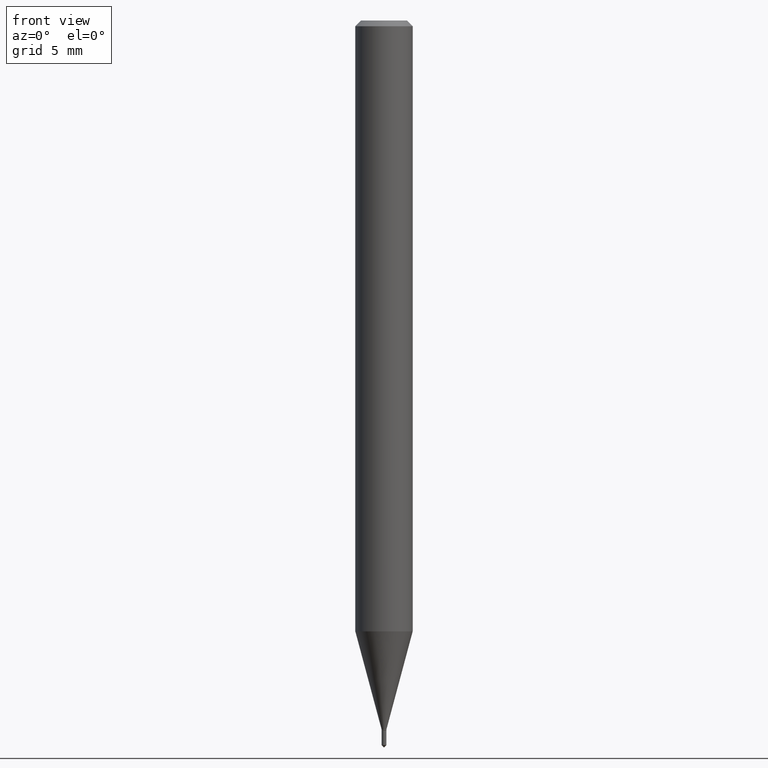
[diagram: clean part render]
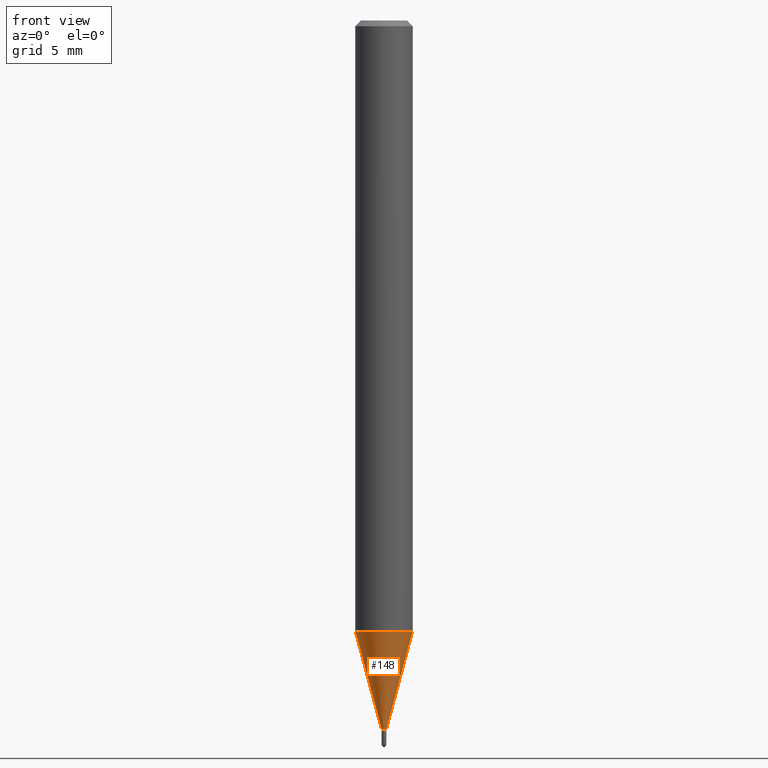
[diagram: same view with one face highlighted and labeled with its STEP entity id]
A machine part, front view. The second image highlights one B-rep face of the part: STEP entity #148.
In plain terms, the highlighted conical surface has half-angle 15 deg.
Its self-contained STEP definition (entity closure, byte-faithful):
#11 = AXIS2_PLACEMENT_3D ( 'NONE', #470, #462, #465 ) ;
#14 = VERTEX_POINT ( 'NONE', #303 ) ;
#40 = DIRECTION ( 'NONE',  ( 1.000000000000000000, -6.982962677686271444E-15, 0.000000000000000000 ) ) ;
#44 = EDGE_CURVE ( 'NONE', #397, #14, #254, .T. ) ;
#101 = LINE ( 'NONE', #255, #324 ) ;
#120 = DIRECTION ( 'NONE',  ( 1.000000000000000000, -6.982962677686196502E-15, 0.000000000000000000 ) ) ;
#126 = ORIENTED_EDGE ( 'NONE', *, *, #461, .F. ) ;
#129 = ORIENTED_EDGE ( 'NONE', *, *, #44, .T. ) ;
#148 = ADVANCED_FACE ( 'NONE', ( #272 ), #203, .T. ) ;
#151 = CARTESIAN_POINT ( 'NONE',  ( 3.568428081985351240E-29, -5.094769569639917175E-15, -1.459199999999999831 ) ) ;
#157 = DIRECTION ( 'NONE',  ( -2.445468806185136597E-29, 3.491481338843145583E-15, 1.000000000000000000 ) ) ;
#169 = CARTESIAN_POINT ( 'NONE',  ( -0.05905000000000015098, -3.969598695798013952E-15, -1.257109448770144855 ) ) ;
#175 = EDGE_CURVE ( 'NONE', #338, #14, #454, .T. ) ;
#177 = VECTOR ( 'NONE', #368, 39.37007874015748143 ) ;
#203 = CONICAL_SURFACE ( 'NONE', #392, 0.004899999999999998107, 0.2617993877991497964 ) ;
#222 = CARTESIAN_POINT ( 'NONE',  ( 0.004899999999999998107, -5.128986086760580222E-15, -1.459199999999999831 ) ) ;
#233 = CARTESIAN_POINT ( 'NONE',  ( 3.074221942927981307E-29, -4.389174181264353445E-15, -1.257109448770144855 ) ) ;
#241 = AXIS2_PLACEMENT_3D ( 'NONE', #233, #157, #40 ) ;
#250 = CIRCLE ( 'NONE', #11, 0.004899999999999998107 ) ;
#252 = ORIENTED_EDGE ( 'NONE', *, *, #175, .F. ) ;
#254 = LINE ( 'NONE', #222, #177 ) ;
#255 = CARTESIAN_POINT ( 'NONE',  ( -0.004899999999999998107, -5.059952975587672945E-15, -1.459199999999999831 ) ) ;
#272 = FACE_OUTER_BOUND ( 'NONE', #331, .T. ) ;
#299 = DIRECTION ( 'NONE',  ( -0.2588190451025211281, 5.211531920934548675E-15, 0.9659258262890682012 ) ) ;
#303 = CARTESIAN_POINT ( 'NONE',  ( 0.05905000000000015098, -4.801518127381729154E-15, -1.257109448770144855 ) ) ;
#324 = VECTOR ( 'NONE', #299, 39.37007874015748143 ) ;
#331 = EDGE_LOOP ( 'NONE', ( #126, #365, #129, #252 ) ) ;
#338 = VERTEX_POINT ( 'NONE', #169 ) ;
#343 = DIRECTION ( 'NONE',  ( -2.445468806185136597E-29, 3.491481338843145583E-15, 1.000000000000000000 ) ) ;
#356 = EDGE_CURVE ( 'NONE', #469, #397, #250, .T. ) ;
#365 = ORIENTED_EDGE ( 'NONE', *, *, #356, .T. ) ;
#368 = DIRECTION ( 'NONE',  ( 0.2588190451025211281, 1.565188264969623940E-15, 0.9659258262890682012 ) ) ;
#392 = AXIS2_PLACEMENT_3D ( 'NONE', #151, #343, #120 ) ;
#397 = VERTEX_POINT ( 'NONE', #463 ) ;
#454 = CIRCLE ( 'NONE', #241, 0.05905000000000015098 ) ;
#461 = EDGE_CURVE ( 'NONE', #469, #338, #101, .T. ) ;
#462 = DIRECTION ( 'NONE',  ( -2.445468806185136597E-29, 3.491481338843145583E-15, 1.000000000000000000 ) ) ;
#463 = CARTESIAN_POINT ( 'NONE',  ( 0.004899999999999998107, -5.128986086760580222E-15, -1.459199999999999831 ) ) ;
#465 = DIRECTION ( 'NONE',  ( 1.000000000000000000, -6.982962677686196502E-15, 0.000000000000000000 ) ) ;
#469 = VERTEX_POINT ( 'NONE', #480 ) ;
#470 = CARTESIAN_POINT ( 'NONE',  ( 3.568428081985351240E-29, -5.094769569639917175E-15, -1.459199999999999831 ) ) ;
#480 = CARTESIAN_POINT ( 'NONE',  ( -0.004899999999999998107, -5.061698716257093659E-15, -1.459199999999999831 ) ) ;